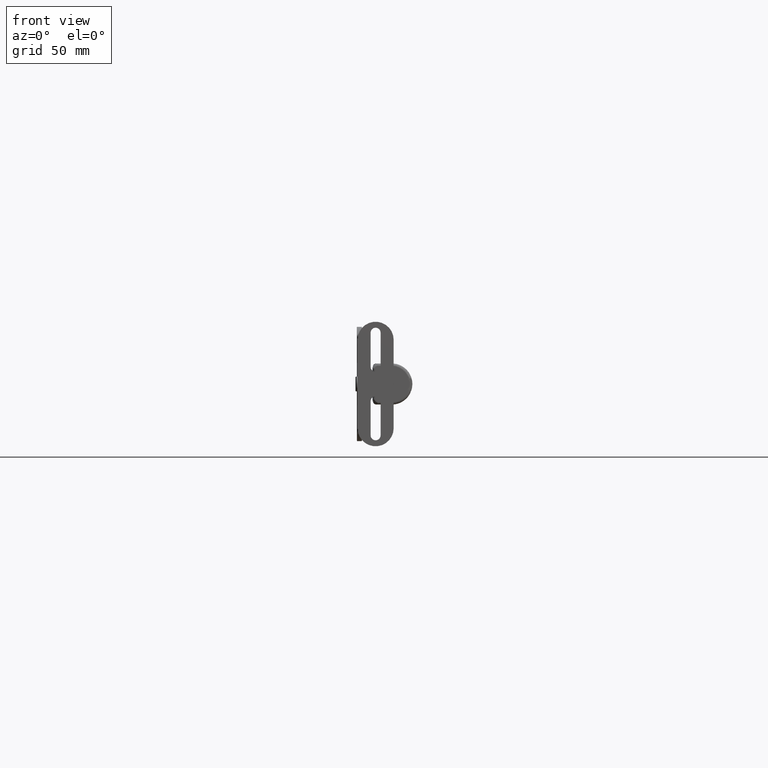
[diagram: clean part render]
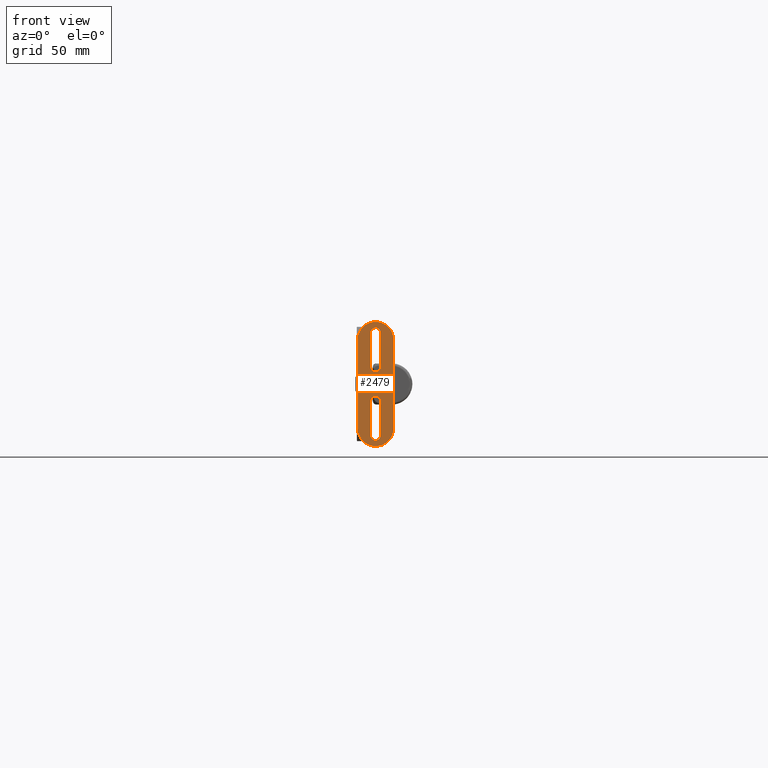
[diagram: same view with one face highlighted and labeled with its STEP entity id]
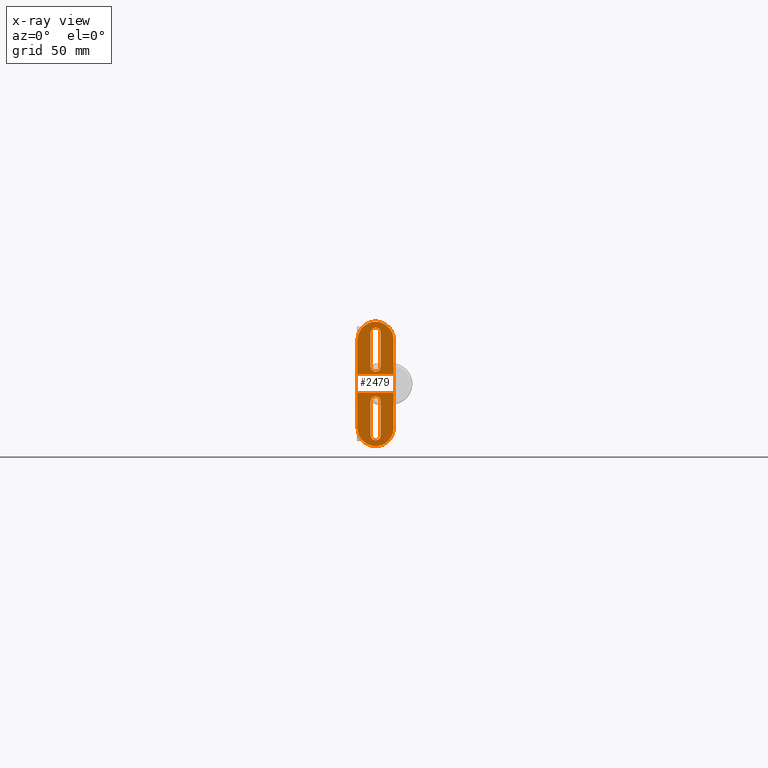
[diagram: x-ray of the same camera — body ghosted, the highlighted face saturated]
A machine part, front view. The second image highlights one B-rep face of the part: STEP entity #2479.
The next image is the same camera in x-ray: the body ghosted, the highlighted face saturated — about 0% of this face is hidden behind the body in this view.
In plain terms, the highlighted planar face has unit normal (0, -1, 0).
Its self-contained STEP definition (entity closure, byte-faithful):
#135=FACE_BOUND('',#421,.T.);
#136=FACE_BOUND('',#422,.T.);
#179=PLANE('',#2663);
#254=FACE_OUTER_BOUND('',#420,.T.);
#420=EDGE_LOOP('',(#1745,#1746,#1747,#1748));
#421=EDGE_LOOP('',(#1749,#1750,#1751,#1752));
#422=EDGE_LOOP('',(#1753,#1754,#1755,#1756));
#618=LINE('',#3723,#799);
#621=LINE('',#3732,#802);
#626=LINE('',#3747,#807);
#629=LINE('',#3756,#810);
#633=LINE('',#3770,#814);
#636=LINE('',#3779,#817);
#799=VECTOR('',#2949,13.7);
#802=VECTOR('',#2960,13.7);
#807=VECTOR('',#2973,13.7);
#810=VECTOR('',#2984,13.7);
#814=VECTOR('',#2996,35.5);
#817=VECTOR('',#3007,35.5);
#977=CIRCLE('',#2642,2.);
#979=CIRCLE('',#2646,2.);
#981=CIRCLE('',#2650,2.);
#983=CIRCLE('',#2654,2.);
#985=CIRCLE('',#2658,7.25);
#987=CIRCLE('',#2662,7.25);
#1114=VERTEX_POINT('',#3713);
#1115=VERTEX_POINT('',#3715);
#1117=VERTEX_POINT('',#3721);
#1119=VERTEX_POINT('',#3727);
#1122=VERTEX_POINT('',#3737);
#1123=VERTEX_POINT('',#3739);
#1125=VERTEX_POINT('',#3745);
#1127=VERTEX_POINT('',#3751);
#1130=VERTEX_POINT('',#3761);
#1131=VERTEX_POINT('',#3763);
#1133=VERTEX_POINT('',#3769);
#1135=VERTEX_POINT('',#3775);
#1346=EDGE_CURVE('',#1115,#1114,#977,.T.);
#1350=EDGE_CURVE('',#1114,#1117,#618,.T.);
#1353=EDGE_CURVE('',#1117,#1119,#979,.T.);
#1355=EDGE_CURVE('',#1119,#1115,#621,.T.);
#1358=EDGE_CURVE('',#1123,#1122,#981,.T.);
#1362=EDGE_CURVE('',#1122,#1125,#626,.T.);
#1365=EDGE_CURVE('',#1125,#1127,#983,.T.);
#1367=EDGE_CURVE('',#1127,#1123,#629,.T.);
#1370=EDGE_CURVE('',#1131,#1130,#985,.T.);
#1373=EDGE_CURVE('',#1133,#1131,#633,.T.);
#1376=EDGE_CURVE('',#1135,#1133,#987,.T.);
#1378=EDGE_CURVE('',#1130,#1135,#636,.T.);
#1745=ORIENTED_EDGE('',*,*,#1378,.T.);
#1746=ORIENTED_EDGE('',*,*,#1376,.T.);
#1747=ORIENTED_EDGE('',*,*,#1373,.T.);
#1748=ORIENTED_EDGE('',*,*,#1370,.T.);
#1749=ORIENTED_EDGE('',*,*,#1346,.T.);
#1750=ORIENTED_EDGE('',*,*,#1350,.T.);
#1751=ORIENTED_EDGE('',*,*,#1353,.T.);
#1752=ORIENTED_EDGE('',*,*,#1355,.T.);
#1753=ORIENTED_EDGE('',*,*,#1358,.T.);
#1754=ORIENTED_EDGE('',*,*,#1362,.T.);
#1755=ORIENTED_EDGE('',*,*,#1365,.T.);
#1756=ORIENTED_EDGE('',*,*,#1367,.T.);
#2479=ADVANCED_FACE('',(#254,#135,#136),#179,.T.);
#2642=AXIS2_PLACEMENT_3D('',#3716,#2942,#2943);
#2646=AXIS2_PLACEMENT_3D('',#3729,#2955,#2956);
#2650=AXIS2_PLACEMENT_3D('',#3740,#2966,#2967);
#2654=AXIS2_PLACEMENT_3D('',#3753,#2979,#2980);
#2658=AXIS2_PLACEMENT_3D('',#3764,#2990,#2991);
#2662=AXIS2_PLACEMENT_3D('',#3776,#3002,#3003);
#2663=AXIS2_PLACEMENT_3D('',#3778,#3005,#3006);
#2942=DIRECTION('center_axis',(-1.,0.,0.));
#2943=DIRECTION('ref_axis',(0.,1.,-2.22044604925031E-15));
#2949=DIRECTION('',(0.,8.10381769799385E-17,1.));
#2955=DIRECTION('center_axis',(-1.,0.,0.));
#2956=DIRECTION('ref_axis',(0.,-1.,0.));
#2960=DIRECTION('',(0.,0.,-1.));
#2966=DIRECTION('center_axis',(-1.,0.,0.));
#2967=DIRECTION('ref_axis',(0.,1.,0.));
#2973=DIRECTION('',(0.,0.,-1.));
#2979=DIRECTION('center_axis',(-1.,0.,0.));
#2980=DIRECTION('ref_axis',(0.,-1.,-1.38777878078145E-16));
#2984=DIRECTION('',(0.,-8.10381769799384E-17,1.));
#2990=DIRECTION('center_axis',(1.,0.,0.));
#2991=DIRECTION('ref_axis',(0.,1.,9.18805261758749E-16));
#2996=DIRECTION('',(0.,-1.2509555207044E-16,1.));
#3002=DIRECTION('center_axis',(1.,0.,0.));
#3003=DIRECTION('ref_axis',(0.,-1.,-6.125368411725E-16));
#3005=DIRECTION('center_axis',(1.,0.,0.));
#3006=DIRECTION('ref_axis',(0.,0.,-1.));
#3007=DIRECTION('',(0.,1.8764332810566E-16,-1.));
#3713=CARTESIAN_POINT('',(18.,3.25,-20.6));
#3715=CARTESIAN_POINT('',(18.,7.25,-20.6));
#3716=CARTESIAN_POINT('Origin',(18.,5.25,-20.6));
#3721=CARTESIAN_POINT('',(18.,3.25,-6.9));
#3723=CARTESIAN_POINT('',(18.,3.25,-3.45));
#3727=CARTESIAN_POINT('',(18.,7.25,-6.90000000000001));
#3729=CARTESIAN_POINT('Origin',(18.,5.25,-6.90000000000001));
#3732=CARTESIAN_POINT('',(18.,7.25,-10.3));
#3737=CARTESIAN_POINT('',(18.,7.25,20.6));
#3739=CARTESIAN_POINT('',(18.,3.25,20.6));
#3740=CARTESIAN_POINT('Origin',(18.,5.25,20.6));
#3745=CARTESIAN_POINT('',(18.,7.25,6.9));
#3747=CARTESIAN_POINT('',(18.,7.25,3.45));
#3751=CARTESIAN_POINT('',(18.,3.25,6.9));
#3753=CARTESIAN_POINT('Origin',(18.,5.25,6.9));
#3756=CARTESIAN_POINT('',(18.,3.25,10.3));
#3761=CARTESIAN_POINT('',(18.,-2.,17.75));
#3763=CARTESIAN_POINT('',(18.,12.5,17.75));
#3764=CARTESIAN_POINT('Origin',(18.,5.25,17.75));
#3769=CARTESIAN_POINT('',(18.,12.5,-17.75));
#3770=CARTESIAN_POINT('',(18.,12.5,-17.75));
#3775=CARTESIAN_POINT('',(18.,-2.,-17.75));
#3776=CARTESIAN_POINT('Origin',(18.,5.25,-17.75));
#3778=CARTESIAN_POINT('Origin',(18.,5.25,-3.16709434814959E-15));
#3779=CARTESIAN_POINT('',(18.,-2.,17.75));